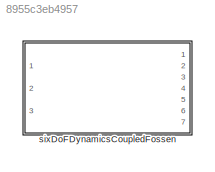
MODEL slx_8955c3eb4957
KIND library
CONFIG AbsTol = auto
CONFIG EnableMultiTasking = off
CONFIG FixedStep = auto
CONFIG MaxStep = auto
CONFIG MinStep = auto
CONFIG RelTol = 1e-3
CONFIG SampleTimeConstraint = Unconstrained
CONFIG SolverName = VariableStepAuto
CONFIG StartTime = 0.0
CONFIG StopTime = 10.0
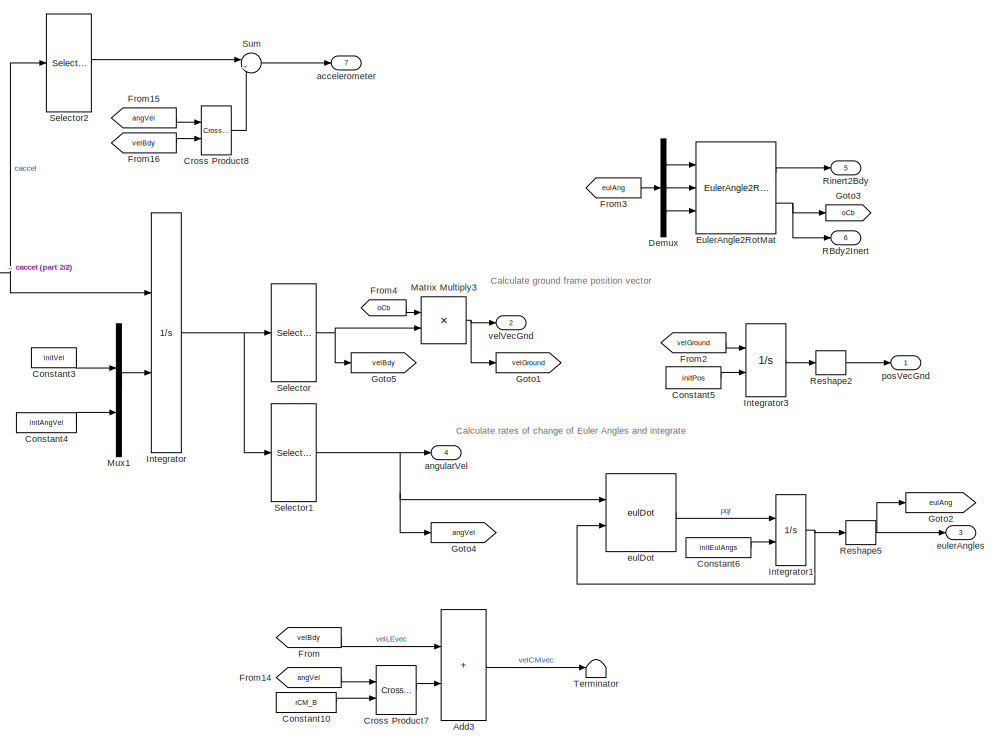
[diagram: sixDoFDynamicsCoupledFossen - part 1/2, middle right region]
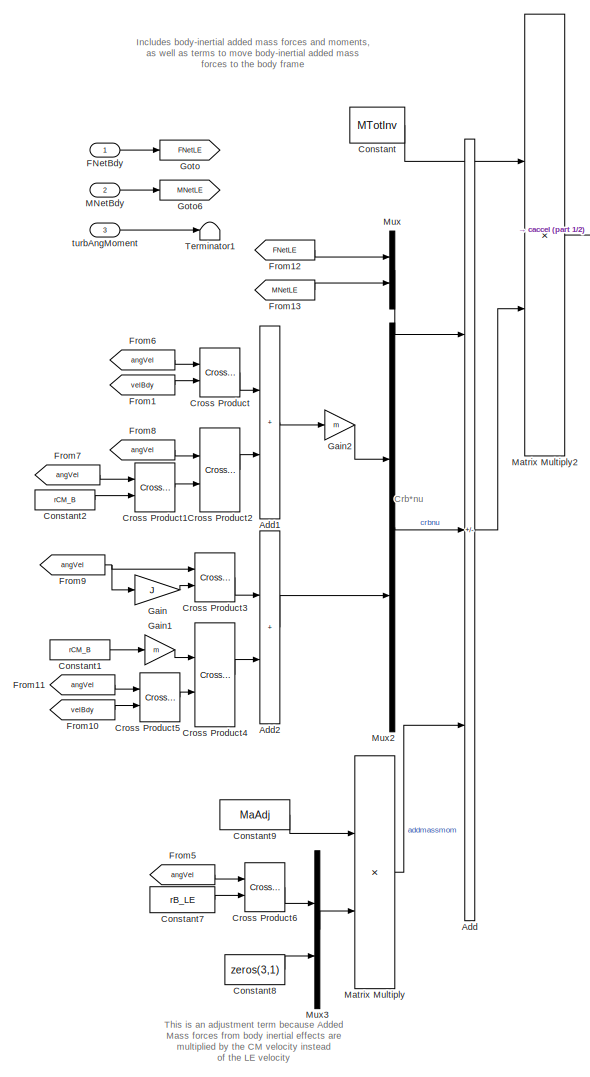
[diagram: sixDoFDynamicsCoupledFossen - part 2/2, left side, full height]
BLOCK [SubSystem] sixDoFDynamicsCoupledFossen
  Ports = [3, 7]
  RequestExecContextInheritance = off
  VariantControl = (default)
BLOCK [Sum] sixDoFDynamicsCoupledFossen/Add
  IconShape = rectangular
  Inputs = +-+
  Ports = [3, 1]
BLOCK [Sum] sixDoFDynamicsCoupledFossen/Add1
  IconShape = rectangular
  Ports = [2, 1]
BLOCK [Sum] sixDoFDynamicsCoupledFossen/Add2
  IconShape = rectangular
  Ports = [2, 1]
BLOCK [Sum] sixDoFDynamicsCoupledFossen/Add3
  IconShape = rectangular
  Ports = [2, 1]
BLOCK [Constant] sixDoFDynamicsCoupledFossen/Constant
  Value = MTotInv
  VectorParams1D = off
BLOCK [Constant] sixDoFDynamicsCoupledFossen/Constant1
  Value = rCM_B
BLOCK [Constant] sixDoFDynamicsCoupledFossen/Constant10
  Value = rCM_B
BLOCK [Constant] sixDoFDynamicsCoupledFossen/Constant2
  Value = rCM_B
BLOCK [Constant] sixDoFDynamicsCoupledFossen/Constant3
  Value = initVel
BLOCK [Constant] sixDoFDynamicsCoupledFossen/Constant4
  Value = initAngVel
BLOCK [Constant] sixDoFDynamicsCoupledFossen/Constant5
  Value = initPos
BLOCK [Constant] sixDoFDynamicsCoupledFossen/Constant6
  Value = initEulAngs
BLOCK [Constant] sixDoFDynamicsCoupledFossen/Constant7
  Value = rB_LE
BLOCK [Constant] sixDoFDynamicsCoupledFossen/Constant8
  Value = zeros(3,1)
BLOCK [Constant] sixDoFDynamicsCoupledFossen/Constant9
  Value = MaAdj
BLOCK [Reference] sixDoFDynamicsCoupledFossen/Cross Product  REF=vrlib/Utilities/Cross Product
  Ports = [2, 1]
  SourceBlock = vrlib/Utilities/Cross Product
  SourceProductBaseCode = SL
  SourceType = Cross Product
BLOCK [Reference] sixDoFDynamicsCoupledFossen/Cross Product1  REF=vrlib/Utilities/Cross Product
  Ports = [2, 1]
  SourceBlock = vrlib/Utilities/Cross Product
  SourceProductBaseCode = SL
  SourceType = Cross Product
BLOCK [Reference] sixDoFDynamicsCoupledFossen/Cross Product2  REF=vrlib/Utilities/Cross Product
  Ports = [2, 1]
  SourceBlock = vrlib/Utilities/Cross Product
  SourceProductBaseCode = SL
  SourceType = Cross Product
BLOCK [Reference] sixDoFDynamicsCoupledFossen/Cross Product3  REF=vrlib/Utilities/Cross Product
  Ports = [2, 1]
  SourceBlock = vrlib/Utilities/Cross Product
  SourceProductBaseCode = SL
  SourceType = Cross Product
BLOCK [Reference] sixDoFDynamicsCoupledFossen/Cross Product4  REF=vrlib/Utilities/Cross Product
  Ports = [2, 1]
  SourceBlock = vrlib/Utilities/Cross Product
  SourceProductBaseCode = SL
  SourceType = Cross Product
BLOCK [Reference] sixDoFDynamicsCoupledFossen/Cross Product5  REF=vrlib/Utilities/Cross Product
  Ports = [2, 1]
  SourceBlock = vrlib/Utilities/Cross Product
  SourceProductBaseCode = SL
  SourceType = Cross Product
BLOCK [Reference] sixDoFDynamicsCoupledFossen/Cross Product6  REF=vrlib/Utilities/Cross Product
  Ports = [2, 1]
  SourceBlock = vrlib/Utilities/Cross Product
  SourceProductBaseCode = SL
  SourceType = Cross Product
BLOCK [Reference] sixDoFDynamicsCoupledFossen/Cross Product7  REF=vrlib/Utilities/Cross Product
  Ports = [2, 1]
  SourceBlock = vrlib/Utilities/Cross Product
  SourceProductBaseCode = SL
  SourceType = Cross Product
BLOCK [Reference] sixDoFDynamicsCoupledFossen/Cross Product8  REF=vrlib/Utilities/Cross Product
  Ports = [2, 1]
  SourceBlock = vrlib/Utilities/Cross Product
  SourceProductBaseCode = SL
  SourceType = Cross Product
BLOCK [Demux] sixDoFDynamicsCoupledFossen/Demux
  Outputs = 3
  Ports = [1, 3]
BLOCK [Reference] sixDoFDynamicsCoupledFossen/EulerAngle2RotMat  REF=eulAng2RotMat_ul/EulerAngle2RotMat
  Ports = [3, 2]
  SourceBlock = eulAng2RotMat_ul/EulerAngle2RotMat
  SourceType = SubSystem
BLOCK [Inport] sixDoFDynamicsCoupledFossen/FNetBdy
BLOCK [From] sixDoFDynamicsCoupledFossen/From
  GotoTag = velBdy
BLOCK [From] sixDoFDynamicsCoupledFossen/From1
  GotoTag = velBdy
BLOCK [From] sixDoFDynamicsCoupledFossen/From10
  GotoTag = velBdy
BLOCK [From] sixDoFDynamicsCoupledFossen/From11
  GotoTag = angVel
BLOCK [From] sixDoFDynamicsCoupledFossen/From12
  GotoTag = FNetLE
BLOCK [From] sixDoFDynamicsCoupledFossen/From13
  GotoTag = MNetLE
BLOCK [From] sixDoFDynamicsCoupledFossen/From14
  GotoTag = angVel
BLOCK [From] sixDoFDynamicsCoupledFossen/From15
  GotoTag = angVel
BLOCK [From] sixDoFDynamicsCoupledFossen/From16
  GotoTag = velBdy
BLOCK [From] sixDoFDynamicsCoupledFossen/From2
  GotoTag = velGround
BLOCK [From] sixDoFDynamicsCoupledFossen/From3
  GotoTag = eulAng
BLOCK [From] sixDoFDynamicsCoupledFossen/From4
  GotoTag = oCb
BLOCK [From] sixDoFDynamicsCoupledFossen/From5
  GotoTag = angVel
BLOCK [From] sixDoFDynamicsCoupledFossen/From6
  GotoTag = angVel
BLOCK [From] sixDoFDynamicsCoupledFossen/From7
  GotoTag = angVel
BLOCK [From] sixDoFDynamicsCoupledFossen/From8
  GotoTag = angVel
BLOCK [From] sixDoFDynamicsCoupledFossen/From9
  GotoTag = angVel
BLOCK [Gain] sixDoFDynamicsCoupledFossen/Gain
  Gain = J
  Multiplication = Matrix(K*u)
BLOCK [Gain] sixDoFDynamicsCoupledFossen/Gain1
  Gain = m
BLOCK [Gain] sixDoFDynamicsCoupledFossen/Gain2
  Gain = m
BLOCK [Goto] sixDoFDynamicsCoupledFossen/Goto
  GotoTag = FNetLE
BLOCK [Goto] sixDoFDynamicsCoupledFossen/Goto1
  GotoTag = velGround
BLOCK [Goto] sixDoFDynamicsCoupledFossen/Goto2
  GotoTag = eulAng
BLOCK [Goto] sixDoFDynamicsCoupledFossen/Goto3
  GotoTag = oCb
BLOCK [Goto] sixDoFDynamicsCoupledFossen/Goto4
  GotoTag = angVel
BLOCK [Goto] sixDoFDynamicsCoupledFossen/Goto5
  GotoTag = velBdy
BLOCK [Goto] sixDoFDynamicsCoupledFossen/Goto6
  GotoTag = MNetLE
BLOCK [Integrator] sixDoFDynamicsCoupledFossen/Integrator
  InitialConditionSource = external
  Ports = [2, 1]
BLOCK [Integrator] sixDoFDynamicsCoupledFossen/Integrator1
  InitialCondition = initEulAngs
  InitialConditionSource = external
  Ports = [2, 1]
BLOCK [Integrator] sixDoFDynamicsCoupledFossen/Integrator3
  InitialCondition = initPos
  InitialConditionSource = external
  Ports = [2, 1]
BLOCK [Inport] sixDoFDynamicsCoupledFossen/MNetBdy
  Port = 2
BLOCK [Product] sixDoFDynamicsCoupledFossen/Matrix Multiply
  Multiplication = Matrix(*)
  Ports = [2, 1]
BLOCK [Product] sixDoFDynamicsCoupledFossen/Matrix Multiply2
  Multiplication = Matrix(*)
  Ports = [2, 1]
BLOCK [Product] sixDoFDynamicsCoupledFossen/Matrix Multiply3
  Multiplication = Matrix(*)
  Ports = [2, 1]
BLOCK [Mux] sixDoFDynamicsCoupledFossen/Mux
  DisplayOption = bar
  Inputs = 2
  Ports = [2, 1]
BLOCK [Mux] sixDoFDynamicsCoupledFossen/Mux1
  DisplayOption = bar
  Inputs = 2
  Ports = [2, 1]
BLOCK [Mux] sixDoFDynamicsCoupledFossen/Mux2
  DisplayOption = bar
  Inputs = 2
  Ports = [2, 1]
BLOCK [Mux] sixDoFDynamicsCoupledFossen/Mux3
  DisplayOption = bar
  Inputs = 2
  Ports = [2, 1]
BLOCK [Outport] sixDoFDynamicsCoupledFossen/RBdy2Inert
  Port = 6
  VectorParamsAs1DForOutWhenUnconnected = off
BLOCK [Reshape] sixDoFDynamicsCoupledFossen/Reshape2
  OutputDimensionality = Column vector (2-D)
  Ports = [1, 1]
BLOCK [Reshape] sixDoFDynamicsCoupledFossen/Reshape5
  OutputDimensionality = Column vector (2-D)
  Ports = [1, 1]
BLOCK [Outport] sixDoFDynamicsCoupledFossen/Rinert2Bdy
  Port = 5
  VectorParamsAs1DForOutWhenUnconnected = off
BLOCK [Selector] sixDoFDynamicsCoupledFossen/Selector
  IndexOptions = Index vector (dialog)
  Indices = [1 2 3]
  InputPortWidth = 6
  OutputSizes = 1
  Ports = [1, 1]
BLOCK [Selector] sixDoFDynamicsCoupledFossen/Selector1
  IndexOptions = Index vector (dialog)
  Indices = [4 5 6]
  InputPortWidth = 6
  OutputSizes = 1
  Ports = [1, 1]
BLOCK [Selector] sixDoFDynamicsCoupledFossen/Selector2
  IndexOptions = Index vector (dialog)
  Indices = [1 2 3]
  InputPortWidth = 6
  OutputSizes = 1
  Ports = [1, 1]
BLOCK [Sum] sixDoFDynamicsCoupledFossen/Sum
  Inputs = |++
  Ports = [2, 1]
BLOCK [Terminator] sixDoFDynamicsCoupledFossen/Terminator
BLOCK [Terminator] sixDoFDynamicsCoupledFossen/Terminator1
BLOCK [Outport] sixDoFDynamicsCoupledFossen/accelerometer
  Port = 7
  VectorParamsAs1DForOutWhenUnconnected = off
BLOCK [Outport] sixDoFDynamicsCoupledFossen/angularVel
  Port = 4
  VectorParamsAs1DForOutWhenUnconnected = off
BLOCK [Reference] sixDoFDynamicsCoupledFossen/eulDot  REF=eulDot/eulDot
  Ports = [2, 1]
  SourceBlock = eulDot/eulDot
  SourceType = SubSystem
BLOCK [Outport] sixDoFDynamicsCoupledFossen/eulerAngles
  Port = 3
  VectorParamsAs1DForOutWhenUnconnected = off
BLOCK [Outport] sixDoFDynamicsCoupledFossen/posVecGnd
  VectorParamsAs1DForOutWhenUnconnected = off
BLOCK [Inport] sixDoFDynamicsCoupledFossen/turbAngMoment
  Port = 3
BLOCK [Outport] sixDoFDynamicsCoupledFossen/velVecGnd
  Port = 2
  VectorParamsAs1DForOutWhenUnconnected = off
ANNOTATION sixDoFDynamicsCoupledFossen: Includes body-inertial added mass forces and moments, as well as terms to move body-inertial added mass forces to the body frame
ANNOTATION sixDoFDynamicsCoupledFossen: This is an adjustment term because Added Mass forces from body inertial effects are multiplied by the CM velocity instead of the LE velocity
ANNOTATION sixDoFDynamicsCoupledFossen: Calculate ground frame position vector
ANNOTATION sixDoFDynamicsCoupledFossen: Calculate rates of change of Euler Angles and integrate
ANNOTATION sixDoFDynamicsCoupledFossen: Crb*nu
LINE sixDoFDynamicsCoupledFossen/Add1:1 -> sixDoFDynamicsCoupledFossen/Gain2:1
LINE sixDoFDynamicsCoupledFossen/Add2:1 -> sixDoFDynamicsCoupledFossen/Mux2:2
LINE sixDoFDynamicsCoupledFossen/Add3:1 -> sixDoFDynamicsCoupledFossen/Terminator:1
LINE sixDoFDynamicsCoupledFossen/Add:1 -> sixDoFDynamicsCoupledFossen/Matrix Multiply2:2
LINE sixDoFDynamicsCoupledFossen/Constant10:1 -> sixDoFDynamicsCoupledFossen/Cross Product7:2
LINE sixDoFDynamicsCoupledFossen/Constant1:1 -> sixDoFDynamicsCoupledFossen/Gain1:1
LINE sixDoFDynamicsCoupledFossen/Constant2:1 -> sixDoFDynamicsCoupledFossen/Cross Product1:2
LINE sixDoFDynamicsCoupledFossen/Constant3:1 -> sixDoFDynamicsCoupledFossen/Mux1:1
LINE sixDoFDynamicsCoupledFossen/Constant4:1 -> sixDoFDynamicsCoupledFossen/Mux1:2
LINE sixDoFDynamicsCoupledFossen/Constant5:1 -> sixDoFDynamicsCoupledFossen/Integrator3:2
LINE sixDoFDynamicsCoupledFossen/Constant6:1 -> sixDoFDynamicsCoupledFossen/Integrator1:2
LINE sixDoFDynamicsCoupledFossen/Constant7:1 -> sixDoFDynamicsCoupledFossen/Cross Product6:2
LINE sixDoFDynamicsCoupledFossen/Constant8:1 -> sixDoFDynamicsCoupledFossen/Mux3:2
LINE sixDoFDynamicsCoupledFossen/Constant9:1 -> sixDoFDynamicsCoupledFossen/Matrix Multiply:1
LINE sixDoFDynamicsCoupledFossen/Constant:1 -> sixDoFDynamicsCoupledFossen/Matrix Multiply2:1
LINE sixDoFDynamicsCoupledFossen/Cross Product1:1 -> sixDoFDynamicsCoupledFossen/Cross Product2:2
LINE sixDoFDynamicsCoupledFossen/Cross Product2:1 -> sixDoFDynamicsCoupledFossen/Add1:2
LINE sixDoFDynamicsCoupledFossen/Cross Product3:1 -> sixDoFDynamicsCoupledFossen/Add2:1
LINE sixDoFDynamicsCoupledFossen/Cross Product4:1 -> sixDoFDynamicsCoupledFossen/Add2:2
LINE sixDoFDynamicsCoupledFossen/Cross Product5:1 -> sixDoFDynamicsCoupledFossen/Cross Product4:2
LINE sixDoFDynamicsCoupledFossen/Cross Product6:1 -> sixDoFDynamicsCoupledFossen/Mux3:1
LINE sixDoFDynamicsCoupledFossen/Cross Product7:1 -> sixDoFDynamicsCoupledFossen/Add3:2
LINE sixDoFDynamicsCoupledFossen/Cross Product8:1 -> sixDoFDynamicsCoupledFossen/Sum:2
LINE sixDoFDynamicsCoupledFossen/Cross Product:1 -> sixDoFDynamicsCoupledFossen/Add1:1
LINE sixDoFDynamicsCoupledFossen/Demux:1 -> sixDoFDynamicsCoupledFossen/EulerAngle2RotMat:1
LINE sixDoFDynamicsCoupledFossen/Demux:2 -> sixDoFDynamicsCoupledFossen/EulerAngle2RotMat:2
LINE sixDoFDynamicsCoupledFossen/Demux:3 -> sixDoFDynamicsCoupledFossen/EulerAngle2RotMat:3
LINE sixDoFDynamicsCoupledFossen/EulerAngle2RotMat:1 -> sixDoFDynamicsCoupledFossen/Rinert2Bdy:1
NET sixDoFDynamicsCoupledFossen/EulerAngle2RotMat:2 -> sixDoFDynamicsCoupledFossen/Goto3:1, sixDoFDynamicsCoupledFossen/RBdy2Inert:1
LINE sixDoFDynamicsCoupledFossen/FNetBdy:1 -> sixDoFDynamicsCoupledFossen/Goto:1
LINE sixDoFDynamicsCoupledFossen/From10:1 -> sixDoFDynamicsCoupledFossen/Cross Product5:2
LINE sixDoFDynamicsCoupledFossen/From11:1 -> sixDoFDynamicsCoupledFossen/Cross Product5:1
LINE sixDoFDynamicsCoupledFossen/From12:1 -> sixDoFDynamicsCoupledFossen/Mux:1
LINE sixDoFDynamicsCoupledFossen/From13:1 -> sixDoFDynamicsCoupledFossen/Mux:2
LINE sixDoFDynamicsCoupledFossen/From14:1 -> sixDoFDynamicsCoupledFossen/Cross Product7:1
LINE sixDoFDynamicsCoupledFossen/From15:1 -> sixDoFDynamicsCoupledFossen/Cross Product8:1
LINE sixDoFDynamicsCoupledFossen/From16:1 -> sixDoFDynamicsCoupledFossen/Cross Product8:2
LINE sixDoFDynamicsCoupledFossen/From1:1 -> sixDoFDynamicsCoupledFossen/Cross Product:2
LINE sixDoFDynamicsCoupledFossen/From2:1 -> sixDoFDynamicsCoupledFossen/Integrator3:1
LINE sixDoFDynamicsCoupledFossen/From3:1 -> sixDoFDynamicsCoupledFossen/Demux:1
LINE sixDoFDynamicsCoupledFossen/From4:1 -> sixDoFDynamicsCoupledFossen/Matrix Multiply3:1
LINE sixDoFDynamicsCoupledFossen/From5:1 -> sixDoFDynamicsCoupledFossen/Cross Product6:1
LINE sixDoFDynamicsCoupledFossen/From6:1 -> sixDoFDynamicsCoupledFossen/Cross Product:1
LINE sixDoFDynamicsCoupledFossen/From7:1 -> sixDoFDynamicsCoupledFossen/Cross Product1:1
LINE sixDoFDynamicsCoupledFossen/From8:1 -> sixDoFDynamicsCoupledFossen/Cross Product2:1
NET sixDoFDynamicsCoupledFossen/From9:1 -> sixDoFDynamicsCoupledFossen/Cross Product3:1, sixDoFDynamicsCoupledFossen/Gain:1
LINE sixDoFDynamicsCoupledFossen/From:1 -> sixDoFDynamicsCoupledFossen/Add3:1
LINE sixDoFDynamicsCoupledFossen/Gain1:1 -> sixDoFDynamicsCoupledFossen/Cross Product4:1
LINE sixDoFDynamicsCoupledFossen/Gain2:1 -> sixDoFDynamicsCoupledFossen/Mux2:1
LINE sixDoFDynamicsCoupledFossen/Gain:1 -> sixDoFDynamicsCoupledFossen/Cross Product3:2
NET sixDoFDynamicsCoupledFossen/Integrator1:1 -> sixDoFDynamicsCoupledFossen/Reshape5:1, sixDoFDynamicsCoupledFossen/eulDot:2
LINE sixDoFDynamicsCoupledFossen/Integrator3:1 -> sixDoFDynamicsCoupledFossen/Reshape2:1
NET sixDoFDynamicsCoupledFossen/Integrator:1 -> sixDoFDynamicsCoupledFossen/Selector1:1, sixDoFDynamicsCoupledFossen/Selector:1
LINE sixDoFDynamicsCoupledFossen/MNetBdy:1 -> sixDoFDynamicsCoupledFossen/Goto6:1
NET sixDoFDynamicsCoupledFossen/Matrix Multiply2:1 -> sixDoFDynamicsCoupledFossen/Integrator:1, sixDoFDynamicsCoupledFossen/Selector2:1
NET sixDoFDynamicsCoupledFossen/Matrix Multiply3:1 -> sixDoFDynamicsCoupledFossen/Goto1:1, sixDoFDynamicsCoupledFossen/velVecGnd:1
LINE sixDoFDynamicsCoupledFossen/Matrix Multiply:1 -> sixDoFDynamicsCoupledFossen/Add:3
LINE sixDoFDynamicsCoupledFossen/Mux1:1 -> sixDoFDynamicsCoupledFossen/Integrator:2
LINE sixDoFDynamicsCoupledFossen/Mux2:1 -> sixDoFDynamicsCoupledFossen/Add:2
LINE sixDoFDynamicsCoupledFossen/Mux3:1 -> sixDoFDynamicsCoupledFossen/Matrix Multiply:2
LINE sixDoFDynamicsCoupledFossen/Mux:1 -> sixDoFDynamicsCoupledFossen/Add:1
LINE sixDoFDynamicsCoupledFossen/Reshape2:1 -> sixDoFDynamicsCoupledFossen/posVecGnd:1
NET sixDoFDynamicsCoupledFossen/Reshape5:1 -> sixDoFDynamicsCoupledFossen/Goto2:1, sixDoFDynamicsCoupledFossen/eulerAngles:1
NET sixDoFDynamicsCoupledFossen/Selector1:1 -> sixDoFDynamicsCoupledFossen/Goto4:1, sixDoFDynamicsCoupledFossen/angularVel:1, sixDoFDynamicsCoupledFossen/eulDot:1
LINE sixDoFDynamicsCoupledFossen/Selector2:1 -> sixDoFDynamicsCoupledFossen/Sum:1
NET sixDoFDynamicsCoupledFossen/Selector:1 -> sixDoFDynamicsCoupledFossen/Goto5:1, sixDoFDynamicsCoupledFossen/Matrix Multiply3:2
LINE sixDoFDynamicsCoupledFossen/Sum:1 -> sixDoFDynamicsCoupledFossen/accelerometer:1
LINE sixDoFDynamicsCoupledFossen/eulDot:1 -> sixDoFDynamicsCoupledFossen/Integrator1:1
LINE sixDoFDynamicsCoupledFossen/turbAngMoment:1 -> sixDoFDynamicsCoupledFossen/Terminator1:1
note: NET lines group one-source signal fan-out (src -> all destinations, sorted); 1:1 wires keep LINE
